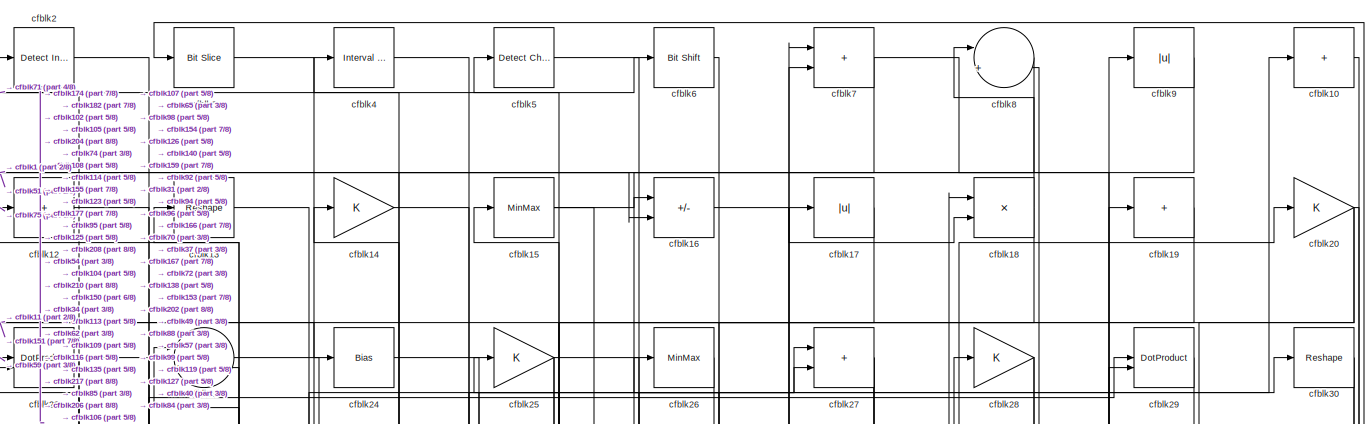
[diagram: root canvas - part 1/8, full width, top band]
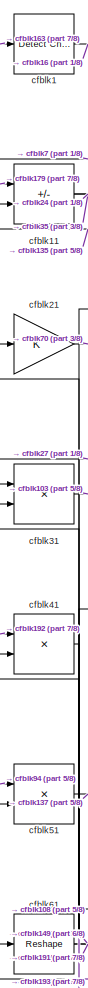
[diagram: root canvas - part 2/8, top left region]
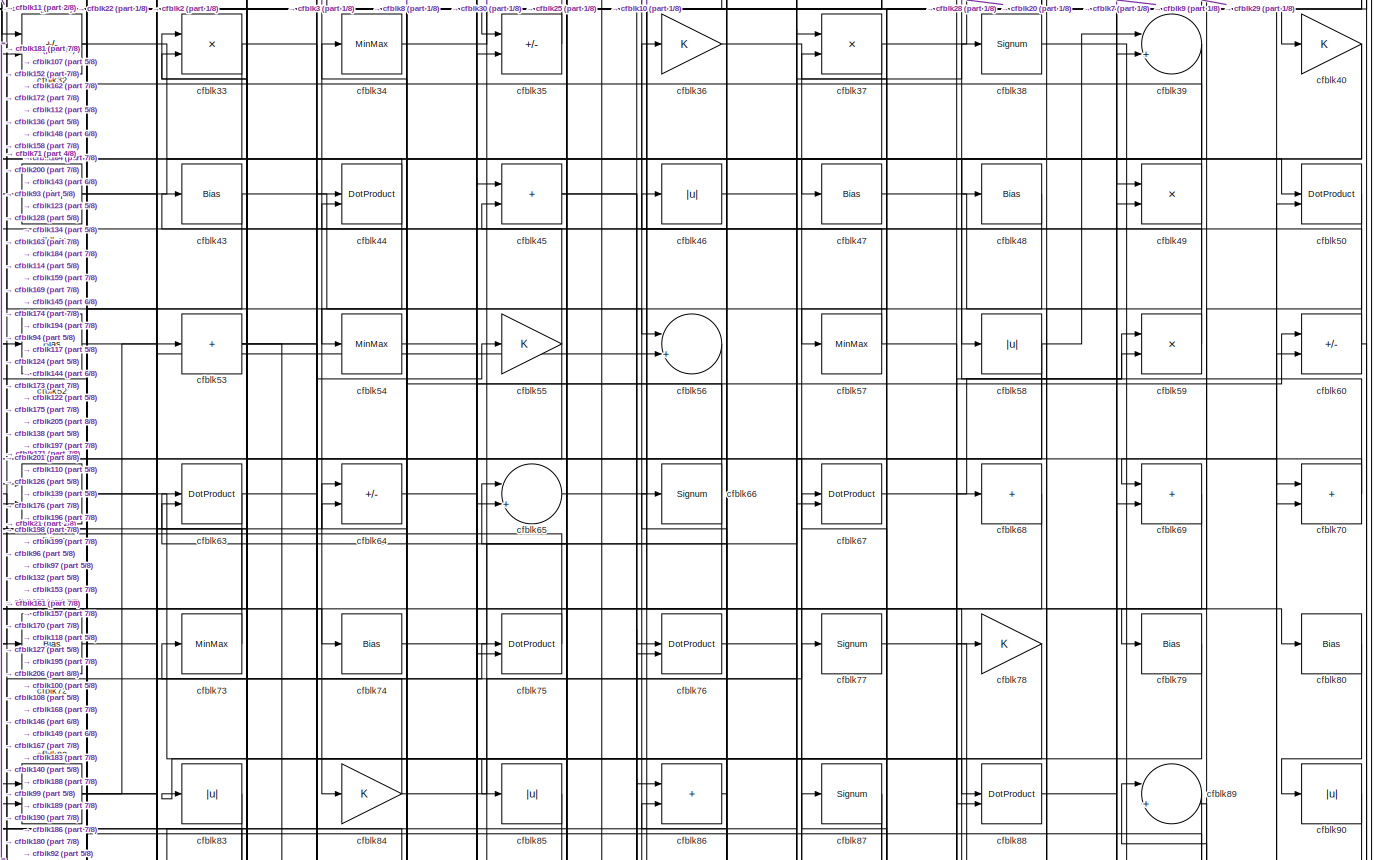
[diagram: root canvas - part 3/8, full width, top band]
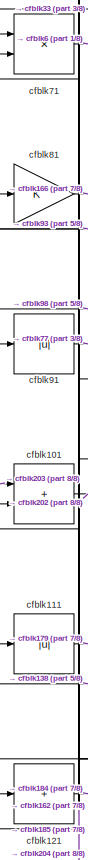
[diagram: root canvas - part 4/8, middle left region]
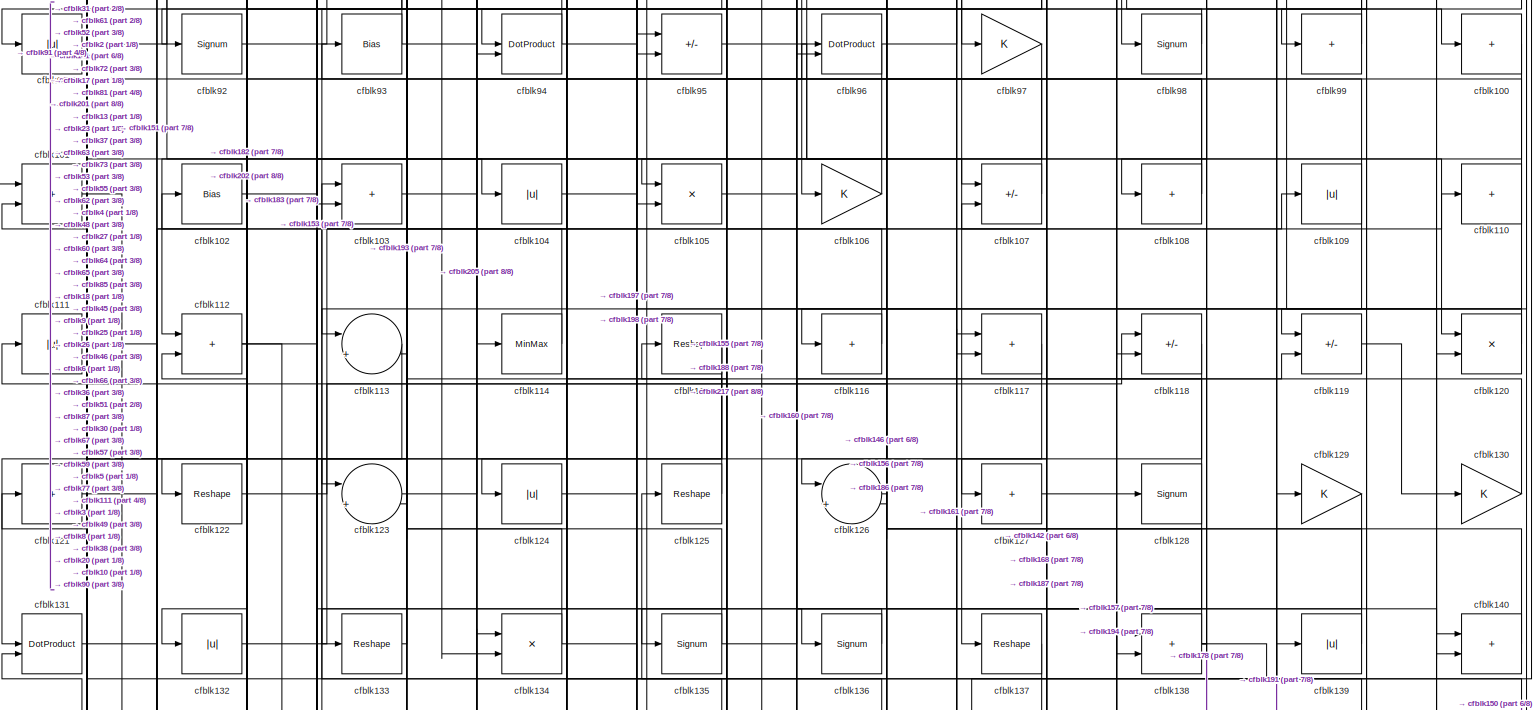
[diagram: root canvas - part 5/8, full width, middle band]
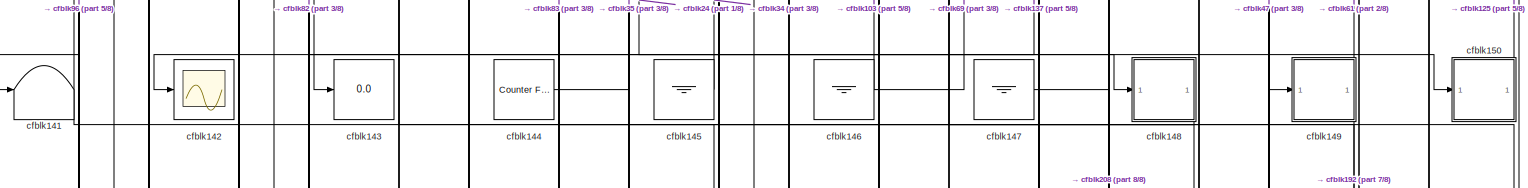
[diagram: root canvas - part 6/8, full width, middle band]
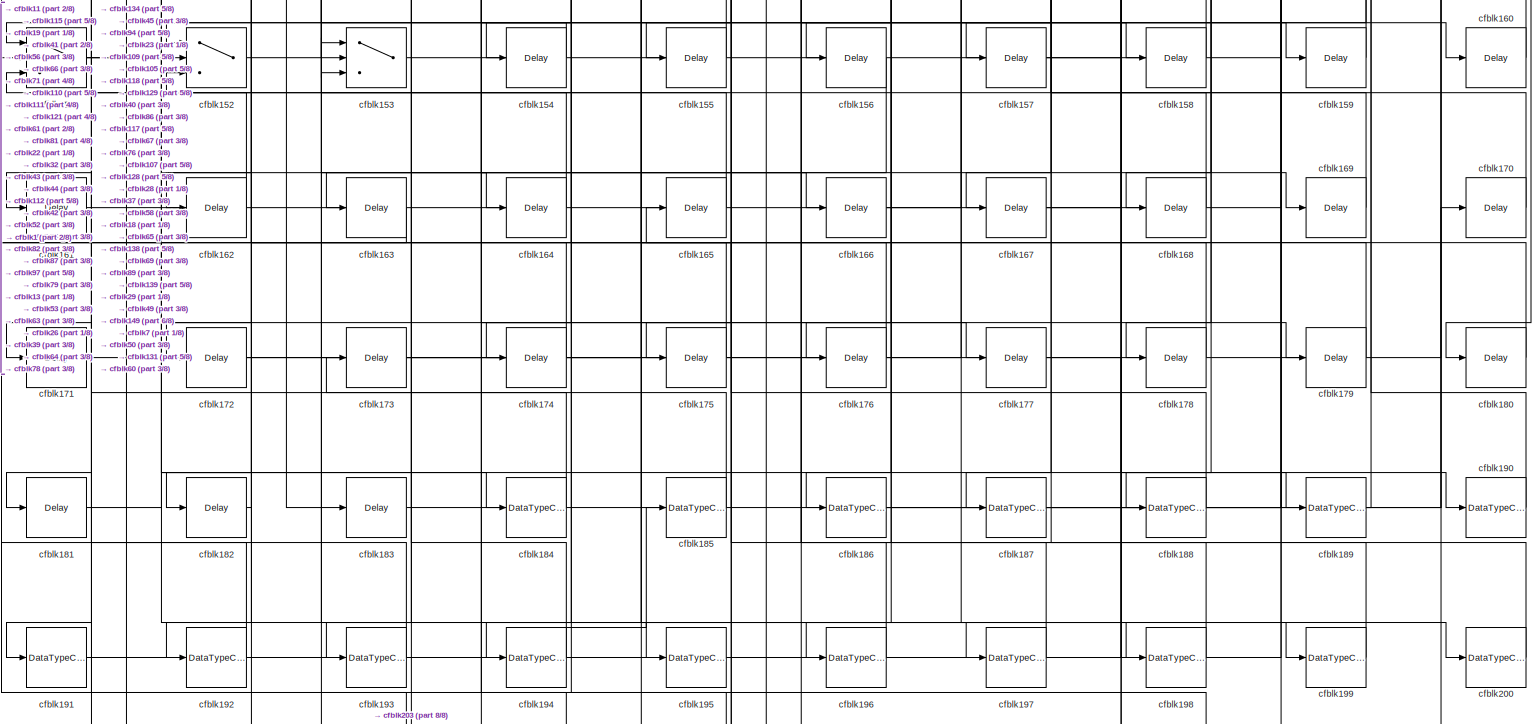
[diagram: root canvas - part 7/8, full width, bottom band]
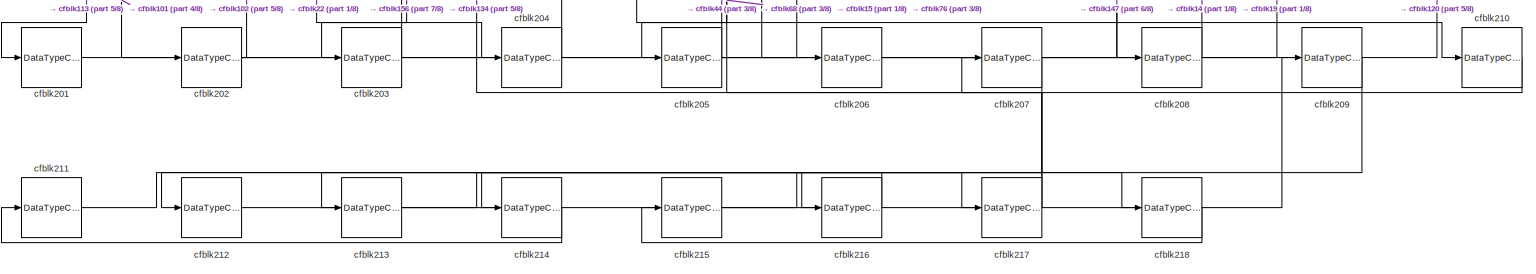
[diagram: root canvas - part 8/8, full width, bottom band]
MODEL slx_3306fc81f498
KIND model
CONFIG AbsTol = auto
CONFIG EnableMultiTasking = off
CONFIG FixedStep = auto
CONFIG MaxStep = auto
CONFIG MinStep = auto
CONFIG RelTol = 1e-3
CONFIG SampleTimeConstraint = Unconstrained
CONFIG SolverName = VariableStepAuto
CONFIG StartTime = 0.0
CONFIG StopTime = 10.0
BLOCK [Reference] cfblk1  REF=simulink/Logic and Bit
Operations/Detect
Change
  LibrarySourceBlock = hdlsllib/Logic and Bit\nOperations/Detect\nChange
  SourceBlock = simulink/Logic and Bit\nOperations/Detect\nChange
  SourceType = Detect Change
BLOCK [Sum] cfblk10
  IconShape = rectangular
  Inputs = +
BLOCK [Sum] cfblk100
  IconShape = rectangular
  Inputs = +
BLOCK [Sum] cfblk101
  IconShape = rectangular
BLOCK [Bias] cfblk102
  Bias = 0.0
  SaturateOnIntegerOverflow = off
BLOCK [Sum] cfblk103
  IconShape = rectangular
BLOCK [Abs] cfblk104
  SaturateOnIntegerOverflow = off
BLOCK [Product] cfblk105
  Inputs = */
  RndMeth = Zero
  SaturateOnIntegerOverflow = on
BLOCK [Gain] cfblk106
BLOCK [Sum] cfblk107
  IconShape = rectangular
  Inputs = +-
BLOCK [Sum] cfblk108
  IconShape = rectangular
  Inputs = +
BLOCK [Abs] cfblk109
  SaturateOnIntegerOverflow = off
BLOCK [Sum] cfblk11
  IconShape = rectangular
  Inputs = +-
BLOCK [Sum] cfblk110
  IconShape = rectangular
  Inputs = +
BLOCK [Abs] cfblk111
  SaturateOnIntegerOverflow = off
BLOCK [Sum] cfblk112
  IconShape = rectangular
BLOCK [Sum] cfblk113
  Inputs = |++
BLOCK [MinMax] cfblk114
BLOCK [Reshape] cfblk115
BLOCK [Sum] cfblk116
  IconShape = rectangular
  Inputs = +
BLOCK [Sum] cfblk117
  IconShape = rectangular
BLOCK [Sum] cfblk118
  IconShape = rectangular
  Inputs = +-
BLOCK [Sum] cfblk119
  IconShape = rectangular
  Inputs = +-
BLOCK [Sum] cfblk12
  IconShape = rectangular
  Inputs = +
BLOCK [Product] cfblk120
  Inputs = */
  RndMeth = Zero
  SaturateOnIntegerOverflow = on
BLOCK [Sum] cfblk121
  IconShape = rectangular
  Inputs = +
BLOCK [Reshape] cfblk122
BLOCK [Sum] cfblk123
  Inputs = |++
BLOCK [Abs] cfblk124
  SaturateOnIntegerOverflow = off
BLOCK [Reshape] cfblk125
BLOCK [Sum] cfblk126
  Inputs = |++
BLOCK [Sum] cfblk127
  IconShape = rectangular
  Inputs = +
BLOCK [Signum] cfblk128
BLOCK [Gain] cfblk129
BLOCK [Reshape] cfblk13
BLOCK [Gain] cfblk130
BLOCK [DotProduct] cfblk131
  OutDataTypeStr = Inherit: Inherit via internal rule
BLOCK [Abs] cfblk132
  SaturateOnIntegerOverflow = off
BLOCK [Reshape] cfblk133
BLOCK [Product] cfblk134
  Inputs = */
  RndMeth = Zero
  SaturateOnIntegerOverflow = on
BLOCK [Signum] cfblk135
BLOCK [Signum] cfblk136
BLOCK [Reshape] cfblk137
BLOCK [Sum] cfblk138
  IconShape = rectangular
BLOCK [Abs] cfblk139
  SaturateOnIntegerOverflow = off
BLOCK [Gain] cfblk14
BLOCK [Sum] cfblk140
  IconShape = rectangular
BLOCK [Terminator] cfblk141
BLOCK [Scope] cfblk142
  Floating = off
  NumInputPorts = 1
  ScopeSpecificationString = Simulink.scopes.TimeScopeBlockCfg('CurrentConfiguration', extmgr.ConfigurationSet(extmgr.Configuration('Core','General UI',true),extmgr.Configuration('Core','Source UI',true),extmgr.Configuration('Sources','WiredSimulink',true,'DataLoggingVariableName','ScopeData2','DataLoggingSaveFormat','Array','DataLoggingLimitDataPoints',true,'DataLoggingDecimation','1'),extmgr.Configuration('Visuals','Time Do...<+868ch>
BLOCK [Display] cfblk143
  Decimation = 1
BLOCK [Reference] cfblk144  REF=hdlsllib/Sources/Counter
Free-Running
  SourceBlock = hdlsllib/Sources/Counter\nFree-Running
  SourceType = Counter Free-Running
BLOCK [Ground] cfblk145
BLOCK [Ground] cfblk146
BLOCK [Ground] cfblk147
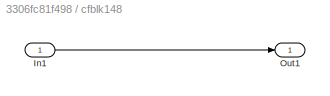
BLOCK [SubSystem] cfblk148
  LibrarySourceBlock = hdlsllib/Ports &\nSubsystems/Subsystem
BLOCK [Inport] cfblk148/In1
BLOCK [Outport] cfblk148/Out1
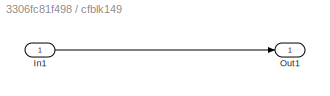
BLOCK [SubSystem] cfblk149
  LibrarySourceBlock = hdlsllib/Ports &\nSubsystems/Subsystem
BLOCK [Inport] cfblk149/In1
BLOCK [Outport] cfblk149/Out1
BLOCK [MinMax] cfblk15
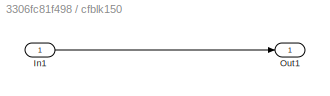
BLOCK [SubSystem] cfblk150
  LibrarySourceBlock = hdlsllib/Ports &\nSubsystems/Subsystem
BLOCK [Inport] cfblk150/In1
BLOCK [Outport] cfblk150/Out1
BLOCK [Switch] cfblk151
  InputSameDT = off
  SaturateOnIntegerOverflow = off
BLOCK [Switch] cfblk152
  InputSameDT = off
  SaturateOnIntegerOverflow = off
BLOCK [Switch] cfblk153
  InputSameDT = off
  SaturateOnIntegerOverflow = off
BLOCK [Delay] cfblk154
  InputPortMap = u0
  SampleTime = 1
BLOCK [Delay] cfblk155
  InputPortMap = u0
  SampleTime = 1
BLOCK [Delay] cfblk156
  InputPortMap = u0
  SampleTime = 1
BLOCK [Delay] cfblk157
  InputPortMap = u0
  SampleTime = 1
BLOCK [Delay] cfblk158
  InputPortMap = u0
  SampleTime = 1
BLOCK [Delay] cfblk159
  InputPortMap = u0
  SampleTime = 1
BLOCK [Sum] cfblk16
  IconShape = rectangular
  Inputs = +-
BLOCK [Delay] cfblk160
  InputPortMap = u0
  SampleTime = 1
BLOCK [Delay] cfblk161
  InputPortMap = u0
  SampleTime = 1
BLOCK [Delay] cfblk162
  InputPortMap = u0
  SampleTime = 1
BLOCK [Delay] cfblk163
  InputPortMap = u0
  SampleTime = 1
BLOCK [Delay] cfblk164
  InputPortMap = u0
  SampleTime = 1
BLOCK [Delay] cfblk165
  InputPortMap = u0
  SampleTime = 1
BLOCK [Delay] cfblk166
  InputPortMap = u0
  SampleTime = 1
BLOCK [Delay] cfblk167
  InputPortMap = u0
  SampleTime = 1
BLOCK [Delay] cfblk168
  InputPortMap = u0
  SampleTime = 1
BLOCK [Delay] cfblk169
  InputPortMap = u0
  SampleTime = 1
BLOCK [Abs] cfblk17
  SaturateOnIntegerOverflow = off
BLOCK [Delay] cfblk170
  InputPortMap = u0
  SampleTime = 1
BLOCK [Delay] cfblk171
  InputPortMap = u0
  SampleTime = 1
BLOCK [Delay] cfblk172
  InputPortMap = u0
  SampleTime = 1
BLOCK [Delay] cfblk173
  InputPortMap = u0
  SampleTime = 1
BLOCK [Delay] cfblk174
  InputPortMap = u0
  SampleTime = 1
BLOCK [Delay] cfblk175
  InputPortMap = u0
  SampleTime = 1
BLOCK [Delay] cfblk176
  InputPortMap = u0
  SampleTime = 1
BLOCK [Delay] cfblk177
  InputPortMap = u0
  SampleTime = 1
BLOCK [Delay] cfblk178
  InputPortMap = u0
  SampleTime = 1
BLOCK [Delay] cfblk179
  InputPortMap = u0
  SampleTime = 1
BLOCK [Product] cfblk18
  Inputs = */
  RndMeth = Zero
  SaturateOnIntegerOverflow = on
BLOCK [Delay] cfblk180
  InputPortMap = u0
  SampleTime = 1
BLOCK [Delay] cfblk181
  InputPortMap = u0
  SampleTime = 1
BLOCK [Delay] cfblk182
  InputPortMap = u0
  SampleTime = 1
BLOCK [Delay] cfblk183
  InputPortMap = u0
  SampleTime = 1
BLOCK [DataTypeConversion] cfblk184
  OutDataTypeStr = uint8
  RndMeth = Floor
  SaturateOnIntegerOverflow = off
BLOCK [DataTypeConversion] cfblk185
  OutDataTypeStr = uint8
  RndMeth = Floor
  SaturateOnIntegerOverflow = off
BLOCK [DataTypeConversion] cfblk186
  RndMeth = Floor
  SaturateOnIntegerOverflow = off
BLOCK [DataTypeConversion] cfblk187
  OutDataTypeStr = uint8
  RndMeth = Floor
  SaturateOnIntegerOverflow = off
BLOCK [DataTypeConversion] cfblk188
  OutDataTypeStr = uint8
  RndMeth = Floor
  SaturateOnIntegerOverflow = off
BLOCK [DataTypeConversion] cfblk189
  OutDataTypeStr = uint8
  RndMeth = Floor
  SaturateOnIntegerOverflow = off
BLOCK [Sum] cfblk19
  IconShape = rectangular
  Inputs = +
BLOCK [DataTypeConversion] cfblk190
  OutDataTypeStr = uint8
  RndMeth = Floor
  SaturateOnIntegerOverflow = off
BLOCK [DataTypeConversion] cfblk191
  OutDataTypeStr = uint8
  RndMeth = Floor
  SaturateOnIntegerOverflow = off
BLOCK [DataTypeConversion] cfblk192
  OutDataTypeStr = uint8
  RndMeth = Floor
  SaturateOnIntegerOverflow = off
BLOCK [DataTypeConversion] cfblk193
  OutDataTypeStr = uint8
  RndMeth = Floor
  SaturateOnIntegerOverflow = off
BLOCK [DataTypeConversion] cfblk194
  RndMeth = Floor
  SaturateOnIntegerOverflow = off
BLOCK [DataTypeConversion] cfblk195
  OutDataTypeStr = uint8
  RndMeth = Floor
  SaturateOnIntegerOverflow = off
BLOCK [DataTypeConversion] cfblk196
  OutDataTypeStr = uint8
  RndMeth = Floor
  SaturateOnIntegerOverflow = off
BLOCK [DataTypeConversion] cfblk197
  OutDataTypeStr = uint8
  RndMeth = Floor
  SaturateOnIntegerOverflow = off
BLOCK [DataTypeConversion] cfblk198
  OutDataTypeStr = uint8
  RndMeth = Floor
  SaturateOnIntegerOverflow = off
BLOCK [DataTypeConversion] cfblk199
  OutDataTypeStr = uint8
  RndMeth = Floor
  SaturateOnIntegerOverflow = off
BLOCK [Reference] cfblk2  REF=simulink/Logic and Bit
Operations/Detect
Increase
  LibrarySourceBlock = hdlsllib/Logic and Bit\nOperations/Detect\nIncrease
  SourceBlock = simulink/Logic and Bit\nOperations/Detect\nIncrease
  SourceType = Detect Increase
BLOCK [Gain] cfblk20
BLOCK [DataTypeConversion] cfblk200
  OutDataTypeStr = uint8
  RndMeth = Floor
  SaturateOnIntegerOverflow = off
BLOCK [DataTypeConversion] cfblk201
  OutDataTypeStr = uint8
  RndMeth = Floor
  SaturateOnIntegerOverflow = off
BLOCK [DataTypeConversion] cfblk202
  RndMeth = Floor
  SaturateOnIntegerOverflow = off
BLOCK [DataTypeConversion] cfblk203
  OutDataTypeStr = uint8
  RndMeth = Floor
  SaturateOnIntegerOverflow = off
BLOCK [DataTypeConversion] cfblk204
  OutDataTypeStr = uint8
  RndMeth = Floor
  SaturateOnIntegerOverflow = off
BLOCK [DataTypeConversion] cfblk205
  RndMeth = Floor
  SaturateOnIntegerOverflow = off
BLOCK [DataTypeConversion] cfblk206
  OutDataTypeStr = uint8
  RndMeth = Floor
  SaturateOnIntegerOverflow = off
BLOCK [DataTypeConversion] cfblk207
  RndMeth = Floor
  SaturateOnIntegerOverflow = off
BLOCK [DataTypeConversion] cfblk208
  OutDataTypeStr = uint8
  RndMeth = Floor
  SaturateOnIntegerOverflow = off
BLOCK [DataTypeConversion] cfblk209
  RndMeth = Floor
  SaturateOnIntegerOverflow = off
BLOCK [Gain] cfblk21
BLOCK [DataTypeConversion] cfblk210
  OutDataTypeStr = uint8
  RndMeth = Floor
  SaturateOnIntegerOverflow = off
BLOCK [DataTypeConversion] cfblk211
  RndMeth = Floor
  SaturateOnIntegerOverflow = off
BLOCK [DataTypeConversion] cfblk212
  OutDataTypeStr = uint8
  RndMeth = Floor
  SaturateOnIntegerOverflow = off
BLOCK [DataTypeConversion] cfblk213
  RndMeth = Floor
  SaturateOnIntegerOverflow = off
BLOCK [DataTypeConversion] cfblk214
  OutDataTypeStr = uint8
  RndMeth = Floor
  SaturateOnIntegerOverflow = off
BLOCK [DataTypeConversion] cfblk215
  RndMeth = Floor
  SaturateOnIntegerOverflow = off
BLOCK [DataTypeConversion] cfblk216
  OutDataTypeStr = uint8
  RndMeth = Floor
  SaturateOnIntegerOverflow = off
BLOCK [DataTypeConversion] cfblk217
  RndMeth = Floor
  SaturateOnIntegerOverflow = off
BLOCK [DataTypeConversion] cfblk218
  OutDataTypeStr = uint8
  RndMeth = Floor
  SaturateOnIntegerOverflow = off
BLOCK [DotProduct] cfblk22
  OutDataTypeStr = Inherit: Inherit via internal rule
BLOCK [Sum] cfblk23
  Inputs = |++
BLOCK [Bias] cfblk24
  Bias = 0.0
  SaturateOnIntegerOverflow = off
BLOCK [Gain] cfblk25
BLOCK [MinMax] cfblk26
BLOCK [Sum] cfblk27
  IconShape = rectangular
BLOCK [Gain] cfblk28
BLOCK [DotProduct] cfblk29
  OutDataTypeStr = Inherit: Inherit via internal rule
BLOCK [Reference] cfblk3  REF=hdlsllib/Logic and Bit
Operations/Bit Slice
  SourceBlock = hdlsllib/Logic and Bit\nOperations/Bit Slice
  SourceType = Bit Slice
BLOCK [Reshape] cfblk30
BLOCK [Product] cfblk31
  Inputs = */
  RndMeth = Zero
  SaturateOnIntegerOverflow = on
BLOCK [Sum] cfblk32
  IconShape = rectangular
  Inputs = +-
BLOCK [Product] cfblk33
  Inputs = */
  RndMeth = Zero
  SaturateOnIntegerOverflow = on
BLOCK [MinMax] cfblk34
BLOCK [Sum] cfblk35
  IconShape = rectangular
  Inputs = +-
BLOCK [Gain] cfblk36
BLOCK [Product] cfblk37
  Inputs = */
  RndMeth = Zero
  SaturateOnIntegerOverflow = on
BLOCK [Signum] cfblk38
BLOCK [Sum] cfblk39
  Inputs = |++
BLOCK [Reference] cfblk4  REF=hdlsllib/Logic and Bit
Operations/Interval Test
  SourceBlock = hdlsllib/Logic and Bit\nOperations/Interval Test
  SourceType = Interval Test
BLOCK [Gain] cfblk40
BLOCK [Product] cfblk41
  Inputs = */
  RndMeth = Zero
  SaturateOnIntegerOverflow = on
BLOCK [Reshape] cfblk42
BLOCK [Bias] cfblk43
  Bias = 0.0
  SaturateOnIntegerOverflow = off
BLOCK [DotProduct] cfblk44
  OutDataTypeStr = Inherit: Inherit via internal rule
BLOCK [Sum] cfblk45
  IconShape = rectangular
BLOCK [Abs] cfblk46
  SaturateOnIntegerOverflow = off
BLOCK [Bias] cfblk47
  Bias = 0.0
  SaturateOnIntegerOverflow = off
BLOCK [Bias] cfblk48
  Bias = 0.0
  SaturateOnIntegerOverflow = off
BLOCK [Product] cfblk49
  Inputs = */
  RndMeth = Zero
  SaturateOnIntegerOverflow = on
BLOCK [Reference] cfblk5  REF=simulink/Logic and Bit
Operations/Detect
Change
  LibrarySourceBlock = hdlsllib/Logic and Bit\nOperations/Detect\nChange
  SourceBlock = simulink/Logic and Bit\nOperations/Detect\nChange
  SourceType = Detect Change
BLOCK [DotProduct] cfblk50
  OutDataTypeStr = Inherit: Inherit via internal rule
BLOCK [Product] cfblk51
  Inputs = */
  RndMeth = Zero
  SaturateOnIntegerOverflow = on
BLOCK [Bias] cfblk52
  Bias = 0.0
  SaturateOnIntegerOverflow = off
BLOCK [Sum] cfblk53
  IconShape = rectangular
  Inputs = +
BLOCK [MinMax] cfblk54
BLOCK [Gain] cfblk55
BLOCK [Sum] cfblk56
  Inputs = |++
BLOCK [MinMax] cfblk57
BLOCK [Abs] cfblk58
  SaturateOnIntegerOverflow = off
BLOCK [Product] cfblk59
  Inputs = */
  RndMeth = Zero
  SaturateOnIntegerOverflow = on
BLOCK [Reference] cfblk6  REF=hdlsllib/Logic and Bit
Operations/Bit Shift
  SourceBlock = hdlsllib/Logic and Bit\nOperations/Bit Shift
  SourceType = Bit Shift
BLOCK [Sum] cfblk60
  IconShape = rectangular
  Inputs = +-
BLOCK [Reshape] cfblk61
BLOCK [Sum] cfblk62
  IconShape = rectangular
  Inputs = +-
BLOCK [DotProduct] cfblk63
  OutDataTypeStr = Inherit: Inherit via internal rule
BLOCK [Sum] cfblk64
  IconShape = rectangular
  Inputs = +-
BLOCK [Sum] cfblk65
  Inputs = |++
BLOCK [Signum] cfblk66
BLOCK [DotProduct] cfblk67
  OutDataTypeStr = Inherit: Inherit via internal rule
BLOCK [Sum] cfblk68
  IconShape = rectangular
  Inputs = +
BLOCK [Sum] cfblk69
  IconShape = rectangular
BLOCK [Sum] cfblk7
  IconShape = rectangular
BLOCK [Sum] cfblk70
  IconShape = rectangular
BLOCK [Product] cfblk71
  Inputs = */
  RndMeth = Zero
  SaturateOnIntegerOverflow = on
BLOCK [Bias] cfblk72
  Bias = 0.0
  SaturateOnIntegerOverflow = off
BLOCK [MinMax] cfblk73
BLOCK [Bias] cfblk74
  Bias = 0.0
  SaturateOnIntegerOverflow = off
BLOCK [DotProduct] cfblk75
  OutDataTypeStr = Inherit: Inherit via internal rule
BLOCK [DotProduct] cfblk76
  OutDataTypeStr = Inherit: Inherit via internal rule
BLOCK [Signum] cfblk77
BLOCK [Gain] cfblk78
BLOCK [Bias] cfblk79
  Bias = 0.0
  SaturateOnIntegerOverflow = off
BLOCK [Sum] cfblk8
  Inputs = |++
BLOCK [Bias] cfblk80
  Bias = 0.0
  SaturateOnIntegerOverflow = off
BLOCK [Gain] cfblk81
BLOCK [Product] cfblk82
  Inputs = */
  RndMeth = Zero
  SaturateOnIntegerOverflow = on
BLOCK [Abs] cfblk83
  SaturateOnIntegerOverflow = off
BLOCK [Gain] cfblk84
BLOCK [Abs] cfblk85
  SaturateOnIntegerOverflow = off
BLOCK [Sum] cfblk86
  IconShape = rectangular
BLOCK [Signum] cfblk87
BLOCK [DotProduct] cfblk88
  OutDataTypeStr = Inherit: Inherit via internal rule
BLOCK [Sum] cfblk89
  Inputs = |++
BLOCK [Abs] cfblk9
  SaturateOnIntegerOverflow = off
BLOCK [Abs] cfblk90
  SaturateOnIntegerOverflow = off
BLOCK [Abs] cfblk91
  SaturateOnIntegerOverflow = off
BLOCK [Signum] cfblk92
BLOCK [Bias] cfblk93
  Bias = 0.0
  SaturateOnIntegerOverflow = off
BLOCK [DotProduct] cfblk94
  OutDataTypeStr = Inherit: Inherit via internal rule
BLOCK [Sum] cfblk95
  IconShape = rectangular
  Inputs = +-
BLOCK [DotProduct] cfblk96
  OutDataTypeStr = Inherit: Inherit via internal rule
BLOCK [Gain] cfblk97
BLOCK [Signum] cfblk98
BLOCK [Sum] cfblk99
  IconShape = rectangular
  Inputs = +
LINE cfblk100:1 -> cfblk112:1
LINE cfblk101:1 -> cfblk202:1
LINE cfblk102:1 -> cfblk29:1
LINE cfblk103:1 -> cfblk96:1
LINE cfblk104:1 -> cfblk27:1
LINE cfblk105:1 -> cfblk160:1
LINE cfblk106:1 -> cfblk105:1
LINE cfblk107:1 -> cfblk52:1
NET cfblk108:1 -> cfblk23:2, cfblk31:1
NET cfblk109:1 -> cfblk155:1, cfblk25:1
LINE cfblk10:1 -> cfblk119:1
NET cfblk110:1 -> cfblk193:1, cfblk46:1
LINE cfblk111:1 -> cfblk179:1
NET cfblk112:1 -> cfblk183:1, cfblk64:1
LINE cfblk113:1 -> cfblk201:1
LINE cfblk114:1 -> cfblk13:1
NET cfblk115:1 -> cfblk124:1, cfblk181:1
LINE cfblk116:1 -> cfblk5:1
LINE cfblk117:1 -> cfblk131:1
LINE cfblk118:1 -> cfblk156:1
LINE cfblk119:1 -> cfblk130:1
NET cfblk11:1 -> cfblk24:1, cfblk35:1
LINE cfblk120:1 -> cfblk116:1
LINE cfblk121:1 -> cfblk184:1
LINE cfblk122:1 -> cfblk118:1
LINE cfblk123:1 -> cfblk27:2
LINE cfblk124:1 -> cfblk60:1
LINE cfblk125:1 -> cfblk4:1
LINE cfblk126:1 -> cfblk66:1
LINE cfblk127:1 -> cfblk59:2
NET cfblk128:1 -> cfblk187:1, cfblk63:2
LINE cfblk129:1 -> cfblk186:1
LINE cfblk12:1 -> cfblk74:1
LINE cfblk130:1 -> cfblk67:1
LINE cfblk131:1 -> cfblk109:1
LINE cfblk132:1 -> cfblk65:2
LINE cfblk133:1 -> cfblk93:1
NET cfblk134:1 -> cfblk198:1, cfblk73:1
NET cfblk135:1 -> cfblk119:2, cfblk11:2
LINE cfblk136:1 -> cfblk133:1
LINE cfblk137:1 -> cfblk142:1
NET cfblk138:1 -> cfblk111:1, cfblk178:1, cfblk3:1, cfblk8:2
LINE cfblk139:1 -> cfblk63:1
LINE cfblk13:1 -> cfblk177:1
LINE cfblk140:1 -> cfblk26:1
LINE cfblk144:1 -> cfblk35:2
LINE cfblk145:1 -> cfblk34:1
NET cfblk146:1 -> cfblk103:1, cfblk69:2
LINE cfblk147:1 -> cfblk208:1
LINE cfblk148/In1:1 -> cfblk148/Out1:1
LINE cfblk148:1 -> cfblk83:1
LINE cfblk149/In1:1 -> cfblk149/Out1:1
NET cfblk149:1 -> cfblk192:1, cfblk61:1
LINE cfblk14:1 -> cfblk210:1
LINE cfblk150/In1:1 -> cfblk150/Out1:1
LINE cfblk150:1 -> cfblk125:1
NET cfblk151:1 -> cfblk110:1, cfblk189:1
LINE cfblk152:1 -> cfblk75:1
LINE cfblk153:1 -> cfblk29:2
LINE cfblk154:1 -> cfblk152:2
LINE cfblk155:1 -> cfblk23:1
LINE cfblk156:1 -> cfblk203:1
LINE cfblk157:1 -> cfblk138:1
LINE cfblk158:1 -> cfblk65:1
LINE cfblk159:1 -> cfblk7:1
NET cfblk15:1 -> cfblk16:1, cfblk206:1
LINE cfblk160:1 -> cfblk131:2
LINE cfblk161:1 -> cfblk117:1
LINE cfblk162:1 -> cfblk71:2
LINE cfblk163:1 -> cfblk1:1
LINE cfblk164:1 -> cfblk82:2
LINE cfblk165:1 -> cfblk153:1
LINE cfblk166:1 -> cfblk18:1
LINE cfblk167:1 -> cfblk39:2
LINE cfblk168:1 -> cfblk107:2
LINE cfblk169:1 -> cfblk151:3
LINE cfblk16:1 -> cfblk18:2
LINE cfblk170:1 -> cfblk37:2
LINE cfblk171:1 -> cfblk67:2
LINE cfblk172:1 -> cfblk60:2
LINE cfblk173:1 -> cfblk75:2
LINE cfblk174:1 -> cfblk22:2
LINE cfblk175:1 -> cfblk45:1
LINE cfblk176:1 -> cfblk152:3
LINE cfblk177:1 -> cfblk190:1
LINE cfblk178:1 -> cfblk151:2
LINE cfblk179:1 -> cfblk11:1
LINE cfblk17:1 -> cfblk126:2
LINE cfblk180:1 -> cfblk64:2
LINE cfblk181:1 -> cfblk32:2
LINE cfblk182:1 -> cfblk112:2
LINE cfblk183:1 -> cfblk49:2
LINE cfblk184:1 -> cfblk43:1
LINE cfblk185:1 -> cfblk121:1
NET cfblk186:1 -> cfblk170:1, cfblk50:2
LINE cfblk187:1 -> cfblk129:1
LINE cfblk188:1 -> cfblk115:1
LINE cfblk189:1 -> cfblk89:1
NET cfblk18:1 -> cfblk135:1, cfblk8:1
LINE cfblk190:1 -> cfblk89:2
LINE cfblk191:1 -> cfblk139:1
LINE cfblk192:1 -> cfblk41:1
LINE cfblk193:1 -> cfblk41:2
NET cfblk194:1 -> cfblk128:1, cfblk173:1, cfblk185:1
LINE cfblk195:1 -> cfblk78:1
LINE cfblk196:1 -> cfblk165:1
LINE cfblk197:1 -> cfblk86:1
LINE cfblk198:1 -> cfblk86:2
LINE cfblk199:1 -> cfblk87:1
LINE cfblk19:1 -> cfblk151:1
LINE cfblk1:1 -> cfblk16:2
LINE cfblk200:1 -> cfblk76:1
LINE cfblk201:1 -> cfblk76:2
NET cfblk202:1 -> cfblk102:1, cfblk19:1
LINE cfblk203:1 -> cfblk101:1
LINE cfblk204:1 -> cfblk101:2
NET cfblk205:1 -> cfblk120:2, cfblk44:1
LINE cfblk206:1 -> cfblk68:1
LINE cfblk207:1 -> cfblk212:1
LINE cfblk208:1 -> cfblk14:1
LINE cfblk209:1 -> cfblk214:1
NET cfblk20:1 -> cfblk40:1, cfblk85:1, cfblk99:1
LINE cfblk210:1 -> cfblk207:1
LINE cfblk211:1 -> cfblk216:1
LINE cfblk212:1 -> cfblk209:1
LINE cfblk213:1 -> cfblk218:1
LINE cfblk214:1 -> cfblk211:1
LINE cfblk215:1 -> cfblk217:1
LINE cfblk216:1 -> cfblk213:1
NET cfblk217:1 -> cfblk134:1, cfblk15:1
LINE cfblk218:1 -> cfblk215:1
LINE cfblk21:1 -> cfblk70:1
NET cfblk22:1 -> cfblk182:1, cfblk204:1
LINE cfblk23:1 -> cfblk95:1
LINE cfblk24:1 -> cfblk150:1
NET cfblk25:1 -> cfblk107:1, cfblk113:2, cfblk62:2
LINE cfblk26:1 -> cfblk154:1
NET cfblk27:1 -> cfblk31:2, cfblk94:2, cfblk96:2
NET cfblk28:1 -> cfblk167:1, cfblk72:1
LINE cfblk29:1 -> cfblk57:1
LINE cfblk2:1 -> cfblk105:2
NET cfblk30:1 -> cfblk113:1, cfblk127:1
LINE cfblk31:1 -> cfblk103:2
NET cfblk32:1 -> cfblk152:1, cfblk48:1
NET cfblk33:1 -> cfblk71:1, cfblk88:2
LINE cfblk34:1 -> cfblk30:1
LINE cfblk35:1 -> cfblk32:1
LINE cfblk36:1 -> cfblk97:1
NET cfblk37:1 -> cfblk123:2, cfblk20:1
LINE cfblk38:1 -> cfblk140:1
NET cfblk39:1 -> cfblk174:1, cfblk47:1
LINE cfblk3:1 -> cfblk84:1
NET cfblk40:1 -> cfblk176:1, cfblk58:1
LINE cfblk41:1 -> cfblk191:1
NET cfblk42:1 -> cfblk164:1, cfblk50:1
NET cfblk43:1 -> cfblk172:1, cfblk56:1
NET cfblk44:1 -> cfblk162:1, cfblk42:1
NET cfblk45:1 -> cfblk138:2, cfblk140:2
LINE cfblk46:1 -> cfblk70:2
LINE cfblk47:1 -> cfblk149:1
LINE cfblk48:1 -> cfblk94:1
NET cfblk49:1 -> cfblk108:1, cfblk2:1
LINE cfblk4:1 -> cfblk95:2
LINE cfblk50:1 -> cfblk79:1
LINE cfblk51:1 -> cfblk137:1
LINE cfblk52:1 -> cfblk200:1
NET cfblk53:1 -> cfblk134:2, cfblk159:1, cfblk88:1
LINE cfblk54:1 -> cfblk80:1
NET cfblk55:1 -> cfblk123:1, cfblk33:1
LINE cfblk56:1 -> cfblk171:1
NET cfblk57:1 -> cfblk118:2, cfblk45:2
NET cfblk58:1 -> cfblk157:1, cfblk175:1, cfblk39:1
LINE cfblk59:1 -> cfblk22:1
LINE cfblk5:1 -> cfblk98:1
NET cfblk60:1 -> cfblk180:1, cfblk36:1
NET cfblk61:1 -> cfblk104:1, cfblk195:1
NET cfblk62:1 -> cfblk114:1, cfblk56:2
NET cfblk63:1 -> cfblk169:1, cfblk82:1
LINE cfblk64:1 -> cfblk117:2
LINE cfblk65:1 -> cfblk10:1
NET cfblk66:1 -> cfblk161:1, cfblk44:2
LINE cfblk67:1 -> cfblk59:1
LINE cfblk68:1 -> cfblk205:1
LINE cfblk69:1 -> cfblk168:1
LINE cfblk6:1 -> cfblk126:1
NET cfblk70:1 -> cfblk28:1, cfblk69:1
LINE cfblk71:1 -> cfblk6:1
LINE cfblk72:1 -> cfblk136:1
LINE cfblk73:1 -> cfblk21:1
LINE cfblk74:1 -> cfblk7:2
LINE cfblk75:1 -> cfblk12:1
LINE cfblk76:1 -> cfblk199:1
LINE cfblk77:1 -> cfblk100:1
LINE cfblk78:1 -> cfblk194:1
LINE cfblk79:1 -> cfblk163:1
NET cfblk7:1 -> cfblk49:1, cfblk51:2
LINE cfblk80:1 -> cfblk90:1
LINE cfblk81:1 -> cfblk166:1
NET cfblk82:1 -> cfblk148:1, cfblk158:1, cfblk53:1
LINE cfblk83:1 -> cfblk143:1
NET cfblk84:1 -> cfblk33:2, cfblk37:1
LINE cfblk85:1 -> cfblk122:1
LINE cfblk86:1 -> cfblk196:1
NET cfblk87:1 -> cfblk132:1, cfblk153:3
LINE cfblk88:1 -> cfblk9:1
LINE cfblk89:1 -> cfblk188:1
LINE cfblk8:1 -> cfblk54:1
LINE cfblk90:1 -> cfblk92:1
LINE cfblk91:1 -> cfblk77:1
LINE cfblk92:1 -> cfblk17:1
NET cfblk93:1 -> cfblk55:1, cfblk81:1
NET cfblk94:1 -> cfblk197:1, cfblk51:1
LINE cfblk95:1 -> cfblk120:1
NET cfblk96:1 -> cfblk141:1, cfblk38:1
LINE cfblk97:1 -> cfblk153:2
LINE cfblk98:1 -> cfblk91:1
LINE cfblk99:1 -> cfblk62:1
LINE cfblk9:1 -> cfblk106:1
note: NET lines group one-source signal fan-out (src -> all destinations, sorted); 1:1 wires keep LINE
